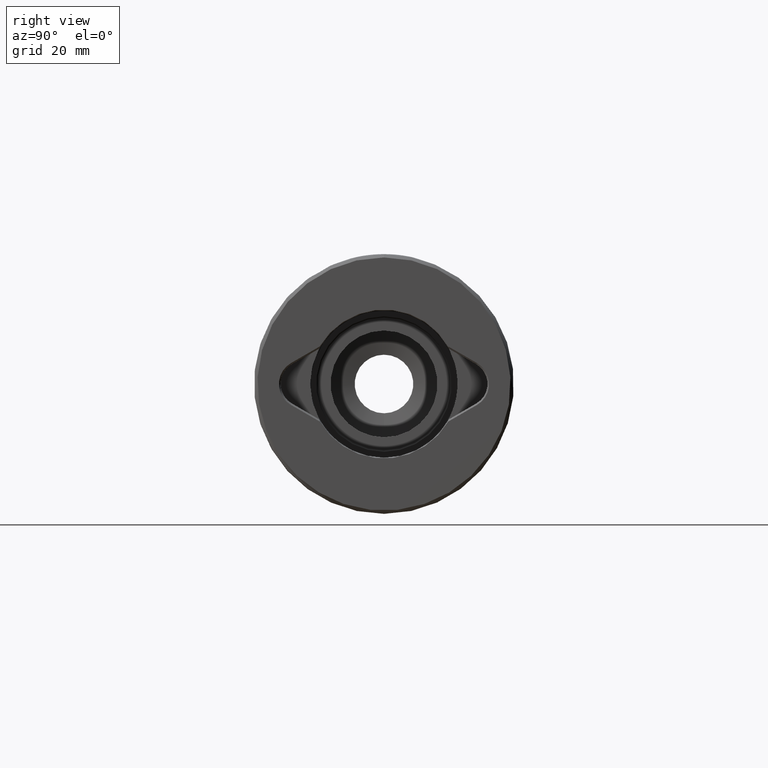
[diagram: clean part render]
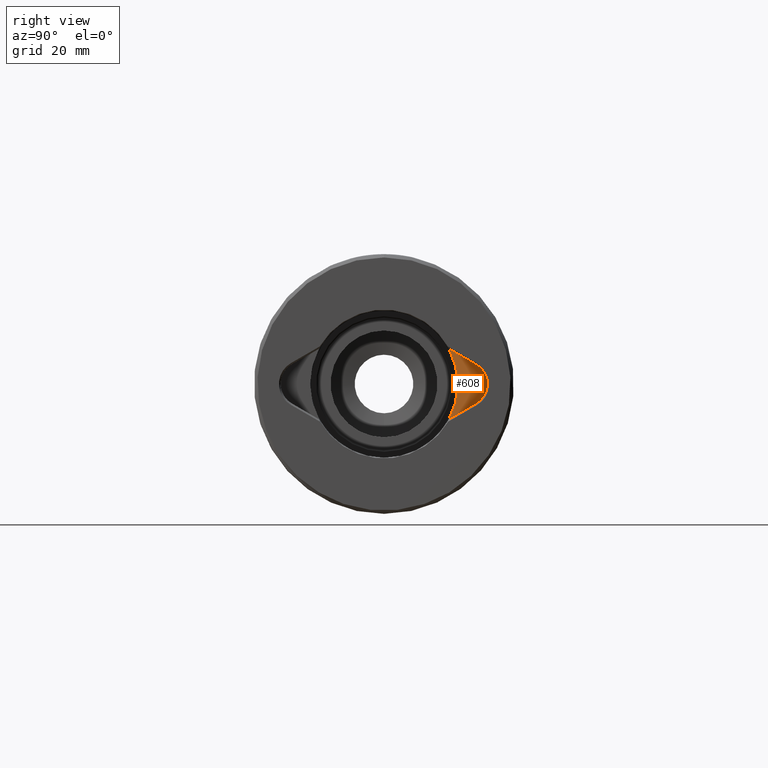
[diagram: same view with one face highlighted and labeled with its STEP entity id]
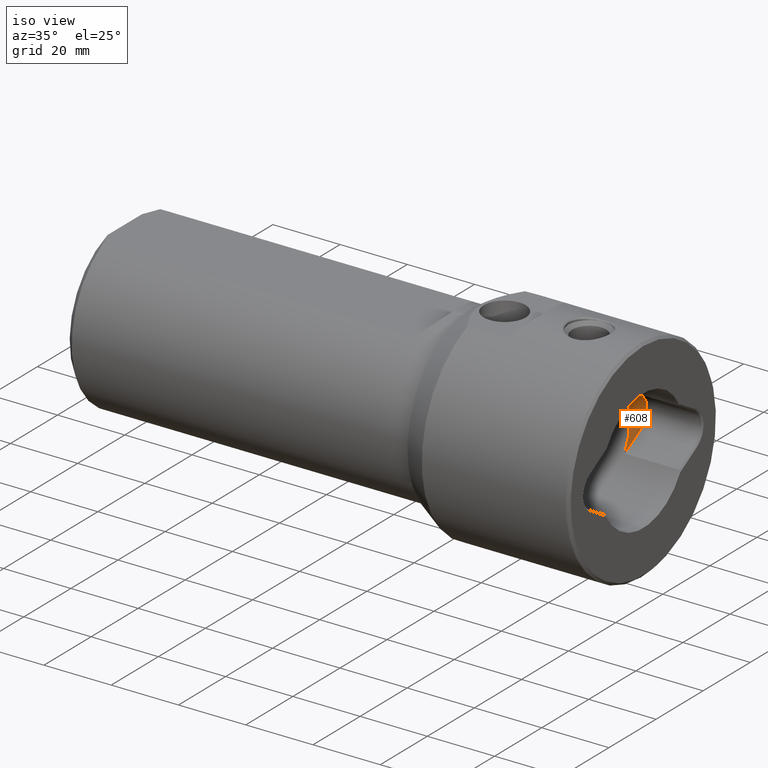
[diagram: same view with one face highlighted and labeled with its STEP entity id]
A machine part, right view. The second image highlights one B-rep face of the part: STEP entity #608.
A second angle (iso view) of the same face is appended — the face is thin or edge-on in the first view.
In plain terms, the highlighted planar face has unit normal (1, 0, 0).
Its self-contained STEP definition (entity closure, byte-faithful):
#90 = DIRECTION ( 'NONE',  ( 0.0000000000000000000, 0.0000000000000000000, 1.000000000000000000 ) ) ;
#115 = LINE ( 'NONE', #2141, #1668 ) ;
#227 = DIRECTION ( 'NONE',  ( 0.0000000000000000000, 0.8660254037844402619, 0.4999999999999972244 ) ) ;
#233 = CARTESIAN_POINT ( 'NONE',  ( 137.5999999999431225, 15.81644489633137241, -8.593024545601693376 ) ) ;
#292 = VECTOR ( 'NONE', #227, 1000.000000000000114 ) ;
#453 = AXIS2_PLACEMENT_3D ( 'NONE', #1884, #633, #90 ) ;
#608 = ADVANCED_FACE ( 'NONE', ( #2020 ), #611, .T. ) ;
#611 = PLANE ( 'NONE',  #946 ) ;
#633 = DIRECTION ( 'NONE',  ( 1.000000000000000000, -0.0000000000000000000, -0.0000000000000000000 ) ) ;
#773 = CARTESIAN_POINT ( 'NONE',  ( 137.5999999999431225, 22.45000000000002061, 4.763139720814428379 ) ) ;
#870 = DIRECTION ( 'NONE',  ( 0.0000000000000000000, -0.8660254037844397068, 0.4999999999999979461 ) ) ;
#883 = VERTEX_POINT ( 'NONE', #1609 ) ;
#946 = AXIS2_PLACEMENT_3D ( 'NONE', #1347, #1000, #1915 ) ;
#1000 = DIRECTION ( 'NONE',  ( 1.000000000000000000, 0.0000000000000000000, 0.0000000000000000000 ) ) ;
#1017 = EDGE_CURVE ( 'NONE', #1827, #1994, #1196, .T. ) ;
#1132 = CIRCLE ( 'NONE', #1212, 18.00000000000000000 ) ;
#1196 = CIRCLE ( 'NONE', #453, 5.499999999999999112 ) ;
#1204 = CARTESIAN_POINT ( 'NONE',  ( 137.5999999999431225, 22.45000000000002061, -4.763139720814411504 ) ) ;
#1212 = AXIS2_PLACEMENT_3D ( 'NONE', #1486, #1667, #2067 ) ;
#1221 = CARTESIAN_POINT ( 'NONE',  ( 137.5999999999431225, 15.81644489633135819, 8.593024545601727127 ) ) ;
#1243 = LINE ( 'NONE', #233, #292 ) ;
#1331 = VERTEX_POINT ( 'NONE', #1221 ) ;
#1347 = CARTESIAN_POINT ( 'NONE',  ( 137.5999999999431225, -19.70000000000004903, 6.071532165918824830E-15 ) ) ;
#1486 = CARTESIAN_POINT ( 'NONE',  ( 137.5999999999431225, 0.0000000000000000000, 0.0000000000000000000 ) ) ;
#1609 = CARTESIAN_POINT ( 'NONE',  ( 137.5999999999431225, 15.81644489633137241, -8.593024545601693376 ) ) ;
#1667 = DIRECTION ( 'NONE',  ( -1.000000000000000000, -0.0000000000000000000, -0.0000000000000000000 ) ) ;
#1668 = VECTOR ( 'NONE', #870, 1000.000000000000114 ) ;
#1707 = ORIENTED_EDGE ( 'NONE', *, *, #2225, .T. ) ;
#1827 = VERTEX_POINT ( 'NONE', #1204 ) ;
#1871 = EDGE_CURVE ( 'NONE', #883, #1827, #1243, .T. ) ;
#1884 = CARTESIAN_POINT ( 'NONE',  ( 137.5999999999431225, 19.70000000000003837, 8.673617379884035472E-15 ) ) ;
#1908 = ORIENTED_EDGE ( 'NONE', *, *, #1871, .T. ) ;
#1915 = DIRECTION ( 'NONE',  ( 0.0000000000000000000, 0.0000000000000000000, -1.000000000000000000 ) ) ;
#1994 = VERTEX_POINT ( 'NONE', #773 ) ;
#2020 = FACE_OUTER_BOUND ( 'NONE', #2030, .T. ) ;
#2030 = EDGE_LOOP ( 'NONE', ( #1707, #1908, #2144, #2221 ) ) ;
#2043 = EDGE_CURVE ( 'NONE', #1994, #1331, #115, .T. ) ;
#2067 = DIRECTION ( 'NONE',  ( 0.0000000000000000000, -1.776356839400250465E-15, -1.000000000000000000 ) ) ;
#2141 = CARTESIAN_POINT ( 'NONE',  ( 137.5999999999431225, 22.45000000000002061, 4.763139720814428379 ) ) ;
#2144 = ORIENTED_EDGE ( 'NONE', *, *, #1017, .T. ) ;
#2221 = ORIENTED_EDGE ( 'NONE', *, *, #2043, .T. ) ;
#2225 = EDGE_CURVE ( 'NONE', #1331, #883, #1132, .T. ) ;